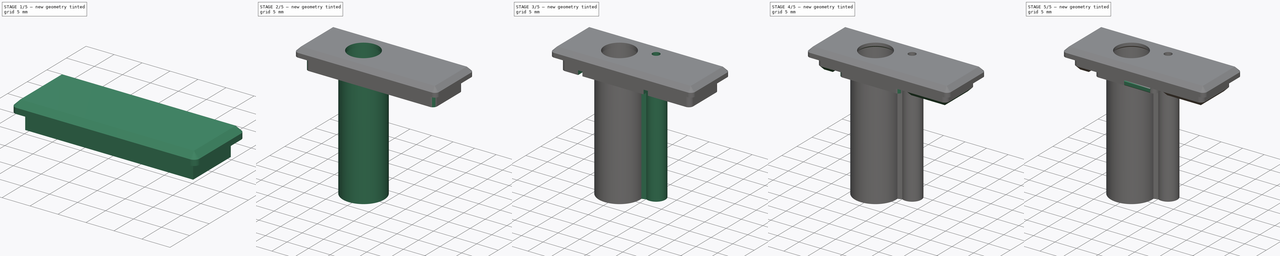
[diagram: build sequence overview — one tinted view per stage of 5, left to right]
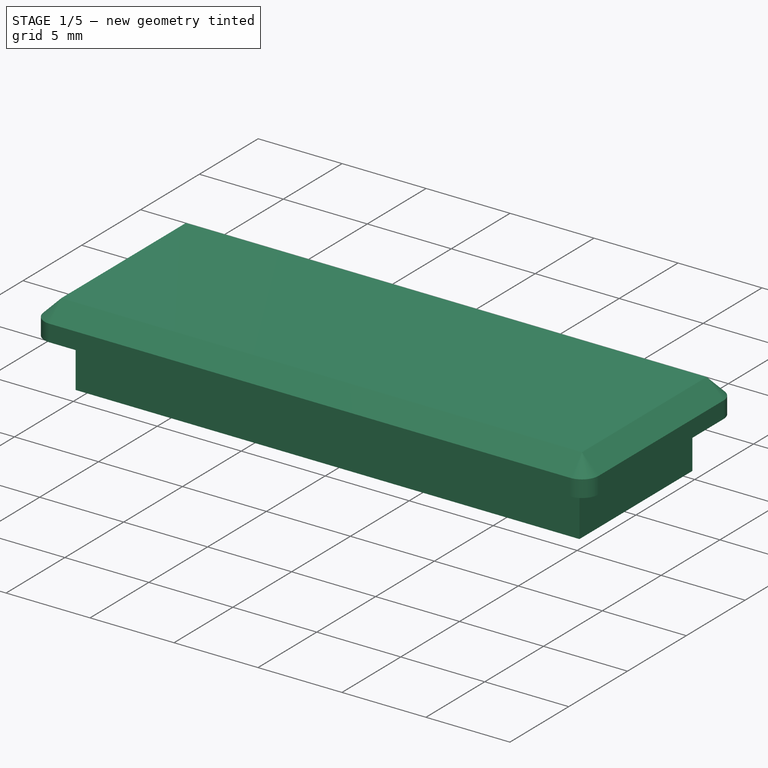
[diagram: stage 1 of 5 — iso view after this stage's code; geometry added in this stage tinted green]
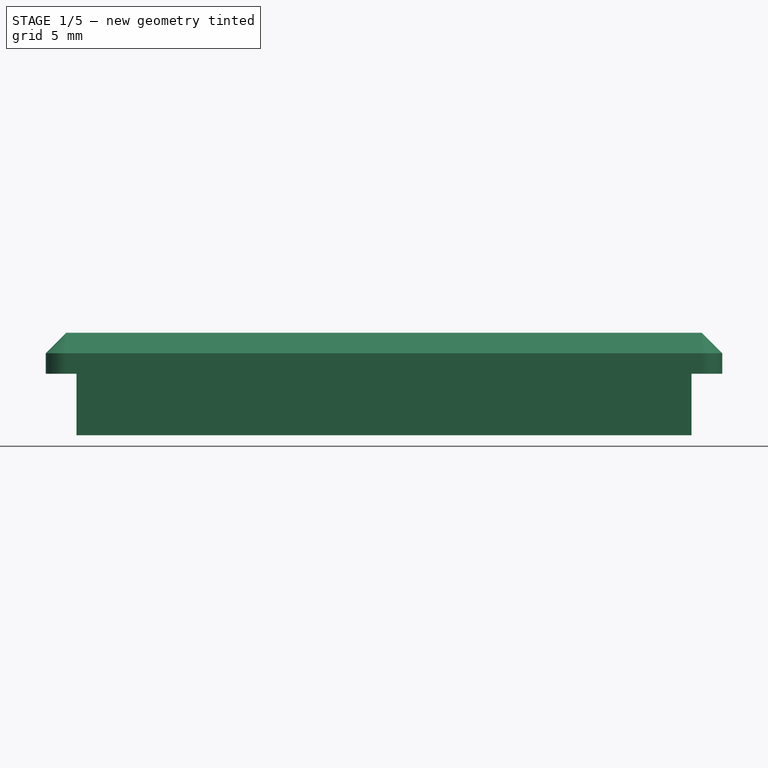
[diagram: stage 1 of 5 — front view after this stage's code; geometry added in this stage tinted green]
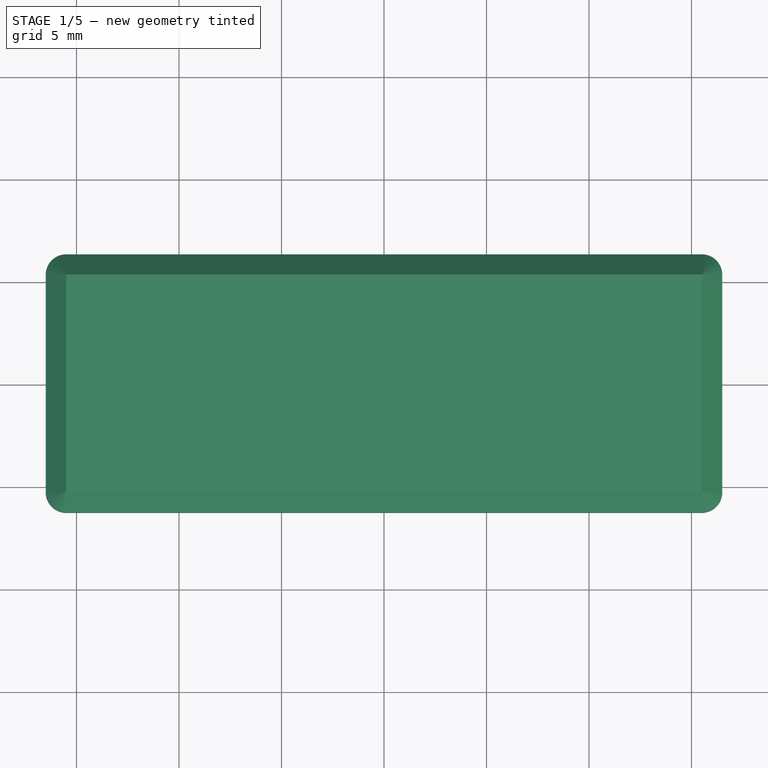
[diagram: stage 1 of 5 — top view after this stage's code; geometry added in this stage tinted green]
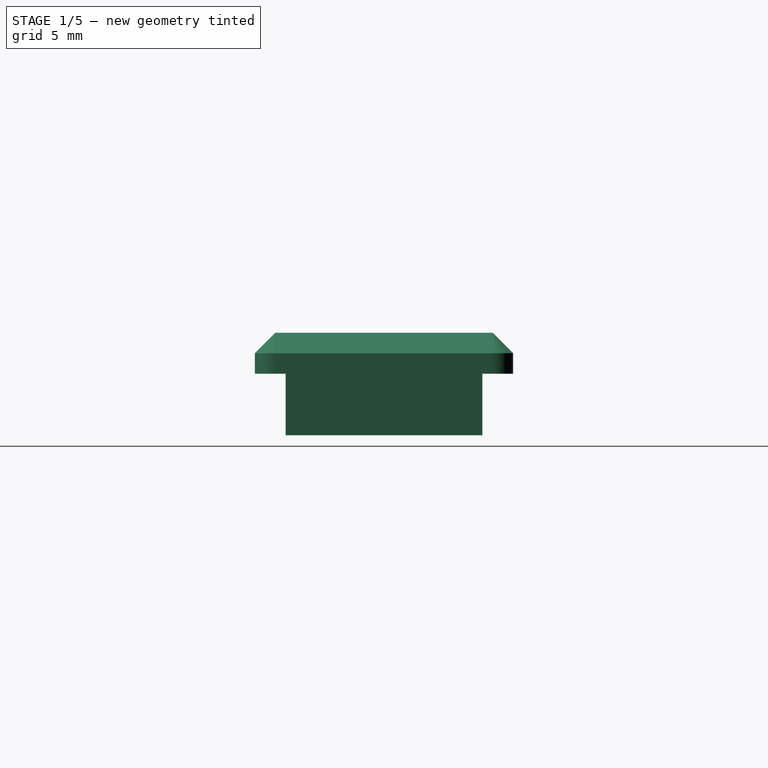
[diagram: stage 1 of 5 — right view after this stage's code; geometry added in this stage tinted green]
FCSTD DOCUMENT  (FreeCAD 0.21R33694 (Git))
Label: sw_and_led_plate
License: All rights reserved
LicenseURL: http://en.wikipedia.org/wiki/All_rights_reserved
objects: Sketcher::SketchObject×11, PartDesign::Pad×8, PartDesign::Chamfer×7, PartDesign::Fillet×3, PartDesign::Pocket×3, PartDesign::Body×1
note: 54 computed .brp shape members not serialized (recipe doc carries the construction recipe); baked Part::Feature solids carry a one-line shape summary decoded from their .brp

FEATURE [Sketcher::SketchObject] Sketch
  FullyConstrained = true
  MapMode = 5
  Support = -> [XY_Plane]
  sketch-geometry (4):
    g0: LineSegment StartX=-15 StartY=4.8 StartZ=0 EndX=15 EndY=4.8 EndZ=0
    g1: LineSegment StartX=15 StartY=4.8 StartZ=0 EndX=15 EndY=-4.8 EndZ=0
    g2: LineSegment StartX=15 StartY=-4.8 StartZ=0 EndX=-15 EndY=-4.8 EndZ=0
    g3: LineSegment StartX=-15 StartY=-4.8 StartZ=0 EndX=-15 EndY=4.8 EndZ=0
  constraints (12):
    c: Coincident(g0,g1)
    c: Coincident(g1,g2)
    c: Coincident(g2,g3)
    c: Coincident(g3,g0)
    c: Horizontal(g0)
    c: Horizontal(g2)
    c: Vertical(g1)
    c: Vertical(g3)
    c: DistanceX(g0,g0) = 30
    c: DistanceY(g3,g3) = 9.6
    c: DistanceY(g-1,g0) = 4.8
    c: DistanceX(g0,g-1) = 15
FEATURE [PartDesign::Pad] Pad
  Direction = (0,0,1)
  Length = 3
  Length2 = 10
  Profile = -> Sketch
  ReferenceAxis = -> Sketch [N_Axis]
  Type = 0
FEATURE [Sketcher::SketchObject] Sketch001
  ExternalGeometry = -> [Pad]
  FullyConstrained = true
  MapMode = 5
  Placement = pos=(0,0,3) rot=(0,0,1;0rad)
  Support = -> [Pad]
  sketch-geometry (4):
    g0: LineSegment StartX=-16.5 StartY=6.3 StartZ=0 EndX=16.5 EndY=6.3 EndZ=0
    g1: LineSegment StartX=16.5 StartY=6.3 StartZ=0 EndX=16.5 EndY=-6.3 EndZ=0
    g2: LineSegment StartX=16.5 StartY=-6.3 StartZ=0 EndX=-16.5 EndY=-6.3 EndZ=0
    g3: LineSegment StartX=-16.5 StartY=-6.3 StartZ=0 EndX=-16.5 EndY=6.3 EndZ=0
  constraints (12):
    c: Coincident(g0,g1)
    c: Coincident(g1,g2)
    c: Coincident(g2,g3)
    c: Coincident(g3,g0)
    c: Horizontal(g0)
    c: Horizontal(g2)
    c: Vertical(g1)
    c: Vertical(g3)
    c: DistanceX(g0,g-3) = 1.5
    c: DistanceY(g-3,g0) = 1.5
    c: DistanceY(g1,g-4) = 1.5
    c: DistanceX(g-4,g1) = 1.5
FEATURE [PartDesign::Pad] Pad001
  BaseFeature = -> Pad
  Direction = (0,0,1)
  Length = 2
  Length2 = 10
  Profile = -> Sketch001
  ReferenceAxis = -> Sketch001 [N_Axis]
  Type = 0
FEATURE [PartDesign::Fillet] Fillet
  Base = -> Pad001 [Edge8,Edge2,Edge5,Edge1]
  BaseFeature = -> Pad001
  Radius = 1
  SupportTransform = false
  UseAllEdges = false
FEATURE [PartDesign::Chamfer] Chamfer
  Angle = 45
  Base = -> Fillet [Edge20]
  BaseFeature = -> Fillet
  ChamferType = 0
  FlipDirection = false
  Size = 1
  Size2 = 1
  SupportTransform = false
  UseAllEdges = false
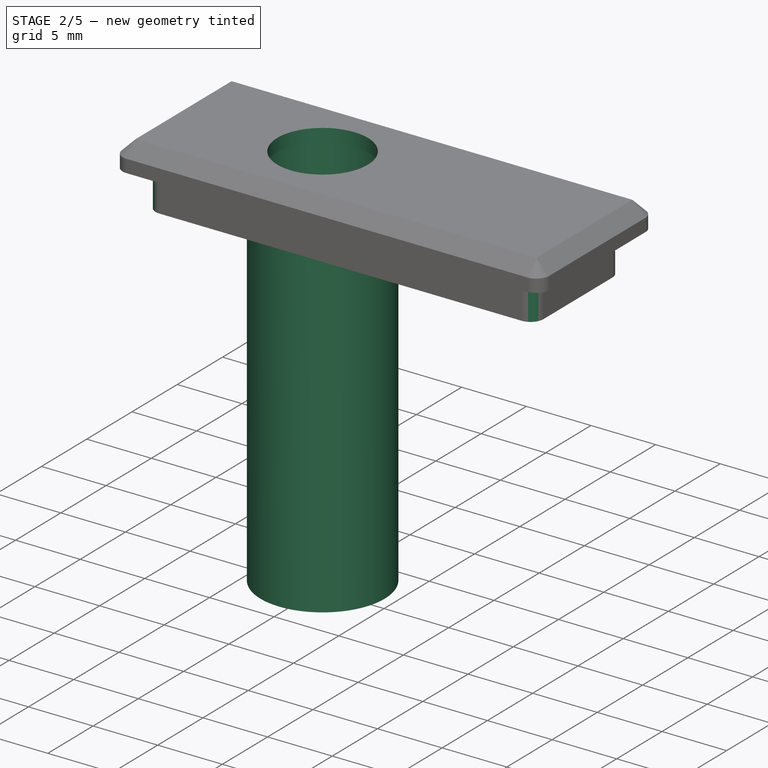
[diagram: stage 2 of 5 — iso view after this stage's code; geometry added in this stage tinted green]
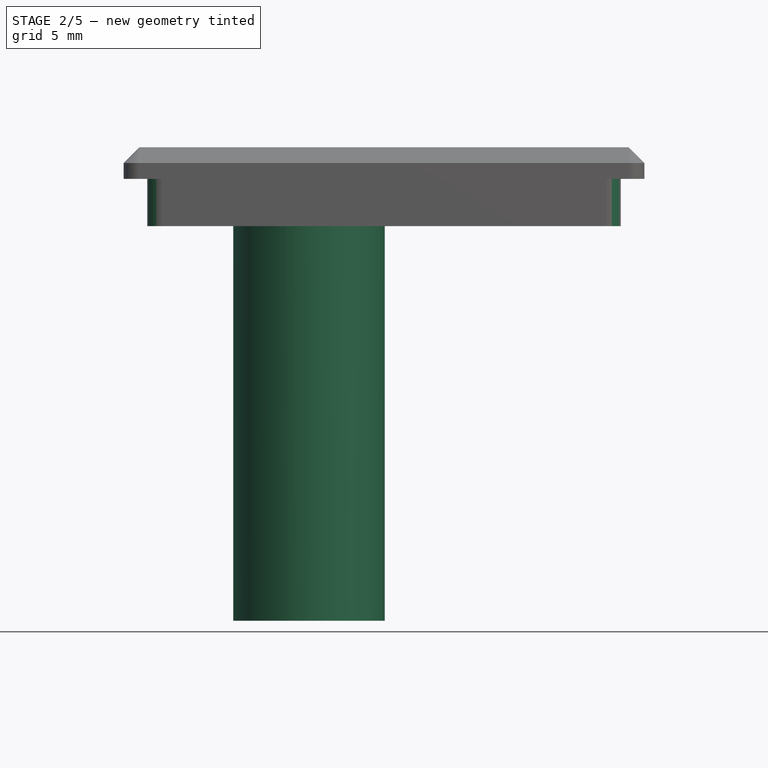
[diagram: stage 2 of 5 — front view after this stage's code; geometry added in this stage tinted green]
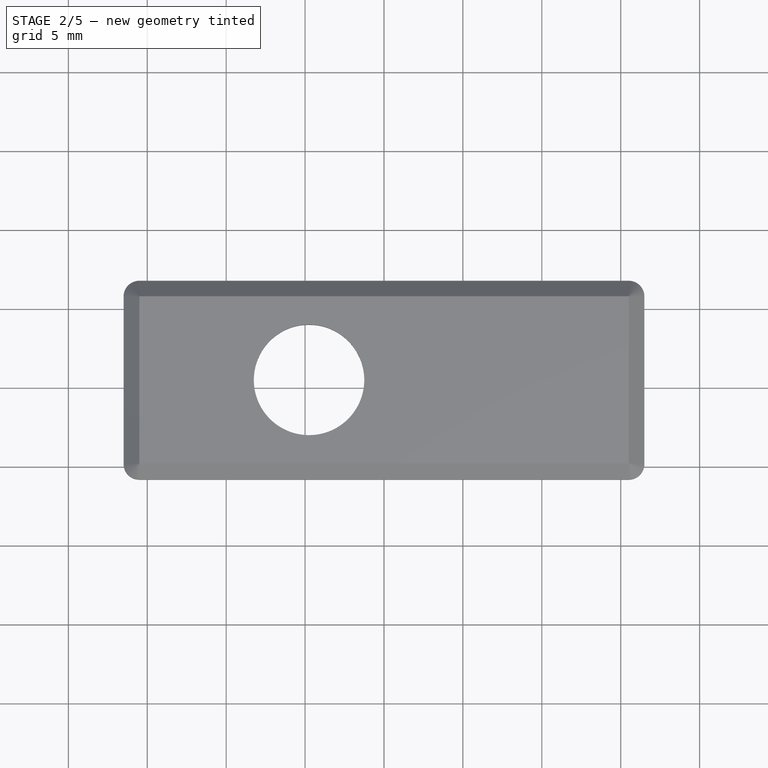
[diagram: stage 2 of 5 — top view after this stage's code; geometry added in this stage tinted green]
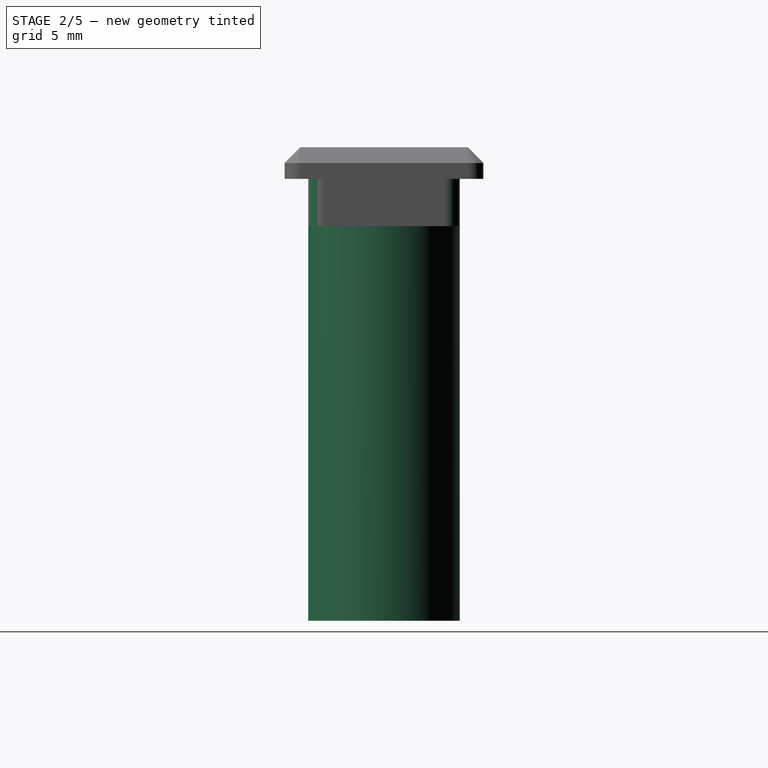
[diagram: stage 2 of 5 — right view after this stage's code; geometry added in this stage tinted green]
FEATURE [PartDesign::Fillet] Fillet001
  Base = -> Chamfer [Edge39,Edge40,Edge42,Edge44]
  BaseFeature = -> Chamfer
  Radius = 1
  SupportTransform = false
  UseAllEdges = false
FEATURE [Sketcher::SketchObject] Sketch002
  ExternalGeometry = -> [Fillet001]
  FullyConstrained = true
  MapMode = 5
  Placement = pos=(0,0,0) rot=(1,0,0;3.14159rad)
  Support = -> [Fillet001]
  sketch-geometry (1):
    g0: Circle CenterX=-4.75 CenterY=0 CenterZ=0 NormalX=0 NormalY=0 NormalZ=1 AngleXU=0 Radius=4
  constraints (3):
    c: DistanceX(g-3,g0) = 11.75
    c: Horizontal(g0,g-1)
    c: Diameter(g0) = 8
FEATURE [PartDesign::Pocket] Pocket
  BaseFeature = -> Fillet001
  Direction = (0,0,1)
  Length = 5
  Length2 = 5
  Profile = -> Sketch002
  ReferenceAxis = -> Sketch002 [N_Axis]
  Type = 0
FEATURE [Sketcher::SketchObject] Sketch003
  ExternalGeometry = -> [Pocket]
  FullyConstrained = true
  MapMode = 5
  Placement = pos=(0,0,0) rot=(1,0,0;3.14159rad)
  Support = -> [Pocket]
  sketch-geometry (2):
    g0: Circle CenterX=-4.75 CenterY=0 CenterZ=0 NormalX=0 NormalY=0 NormalZ=1 AngleXU=0 Radius=4
    g1: Circle CenterX=-4.75 CenterY=0 CenterZ=0 NormalX=0 NormalY=0 NormalZ=1 AngleXU=0 Radius=4.8
  constraints (5):
    c: PointOnObject(g0,g-1)
    c: Diameter(g0) = 8
    c: DistanceX(g-3,g0) = 11.75
    c: Coincident(g1,g0)
    c: Diameter(g1) = 9.6
FEATURE [PartDesign::Pad] Pad002
  BaseFeature = -> Pocket
  Direction = (0,0,-1)
  Length = 25
  Length2 = 10
  Profile = -> Sketch003
  ReferenceAxis = -> Sketch003 [N_Axis]
  Type = 0
FEATURE [Sketcher::SketchObject] Sketch005
  FullyConstrained = false
  MapMode = 5
  Placement = pos=(0,0,5) rot=(0,0,1;0rad)
  sketch-geometry (1):
    g0: Circle CenterX=1.85 CenterY=2.7 CenterZ=0 NormalX=0 NormalY=0 NormalZ=1 AngleXU=0 Radius=0.85
  constraints (2):
    c: Diameter(g0) = 1.7
    c: DistanceY(g-1,g0) = 2.7
FEATURE [Sketcher::SketchObject] Sketch006
  FullyConstrained = false
  MapMode = 5
  Placement = pos=(0,0,0) rot=(1,0,0;3.14159rad)
  sketch-geometry (2):
    g0: Circle CenterX=1.85 CenterY=-2.7 CenterZ=0 NormalX=0 NormalY=0 NormalZ=1 AngleXU=0 Radius=0.85
    g1: Circle CenterX=1.85 CenterY=-2.7 CenterZ=0 NormalX=0 NormalY=0 NormalZ=1 AngleXU=0 Radius=2.15
  constraints (4):
    c: Diameter(g0) = 1.7
    c: DistanceY(g0,g-1) = 2.7
    c: Coincident(g1,g0)
    c: Diameter(g1) = 4.3
FEATURE [Sketcher::SketchObject] Sketch007
  FullyConstrained = false
  MapMode = 5
  Placement = pos=(0,0,0) rot=(1,0,0;3.14159rad)
  sketch-geometry (8):
    g0: LineSegment StartX=-11 StartY=4.8 StartZ=0 EndX=-10 EndY=4.8 EndZ=0
    g1: LineSegment StartX=-10 StartY=4.8 StartZ=0 EndX=-10 EndY=-4.8 EndZ=0
    g2: LineSegment StartX=-10 StartY=-4.8 StartZ=0 EndX=-11 EndY=-4.8 EndZ=0
    g3: LineSegment StartX=-11 StartY=-4.8 StartZ=0 EndX=-11 EndY=4.8 EndZ=0
    g4: LineSegment StartX=4.2 StartY=4.8 StartZ=0 EndX=5.2 EndY=4.8 EndZ=0
    g5: LineSegment StartX=5.2 StartY=4.8 StartZ=0 EndX=5.2 EndY=-4.8 EndZ=0
    g6: LineSegment StartX=5.2 StartY=-4.8 StartZ=0 EndX=4.2 EndY=-4.8 EndZ=0
    g7: LineSegment StartX=4.2 StartY=-4.8 StartZ=0 EndX=4.2 EndY=4.8 EndZ=0
  constraints (20):
    c: Coincident(g0,g1)
    c: Coincident(g1,g2)
    c: Coincident(g2,g3)
    c: Coincident(g3,g0)
    c: Horizontal(g0)
    c: Horizontal(g2)
    c: Vertical(g1)
    c: Vertical(g3)
    c: Coincident(g4,g5)
    c: Coincident(g5,g6)
    c: Coincident(g6,g7)
    c: Coincident(g7,g4)
    c: Horizontal(g4)
    c: Horizontal(g6)
    c: Vertical(g5)
    c: Vertical(g7)
    c: DistanceX(g4,g4) = 1
    c: DistanceX(g-1,g6) = 4.2
    c: DistanceX(g1,g-1) = 10
    c: DistanceX(g0,g0) = 1
FEATURE [Sketcher::SketchObject] Sketch008
  FullyConstrained = false
  MapMode = 5
  Placement = pos=(0,0,-25) rot=(1,0,0;3.14159rad)
  sketch-geometry (8):
    g0: LineSegment StartX=-0.072417 StartY=-0.382873 StartZ=0 EndX=0.996273 EndY=-0.781203 EndZ=0
    g1: LineSegment StartX=0.996273 StartY=-0.781203 StartZ=0 EndX=0.29191 EndY=-1.50985 EndZ=0
    g2: LineSegment StartX=0.29191 StartY=-1.50985 StartZ=0 EndX=-0.179286 EndY=-2.4571 EndZ=0
    g3: LineSegment StartX=-0.179286 StartY=-2.4571 StartZ=0 EndX=-0.215945 EndY=-3.10665 EndZ=0
    g4: LineSegment StartX=-0.215945 StartY=-3.10665 StartZ=0 EndX=-1.03758 EndY=-2.73907 EndZ=0
    g5: LineSegment StartX=-1.03758 StartY=-2.73907 StartZ=0 EndX=-0.486219 EndY=-1.83095 EndZ=0
    g6: LineSegment StartX=-0.486219 StartY=-1.83095 StartZ=0 EndX=-0.226756 EndY=-0.91202 EndZ=0
    g7: LineSegment StartX=-0.226756 StartY=-0.91202 StartZ=0 EndX=-0.072417 EndY=-0.382873 EndZ=0
  constraints (8):
    c: Coincident(g0,g1)
    c: Coincident(g1,g2)
    c: Coincident(g2,g3)
    c: Coincident(g3,g4)
    c: Coincident(g4,g5)
    c: Coincident(g5,g6)
    c: Coincident(g6,g7)
    c: Coincident(g7,g0)
FEATURE [Sketcher::SketchObject] Sketch009
  ExternalGeometry = -> [Pad002]
  FullyConstrained = true
  MapMode = 5
  Placement = pos=(0,0,5) rot=(0,0,1;0rad)
  Support = -> [Pad002]
  sketch-geometry (2):
    g0: Circle CenterX=-4.75 CenterY=0 CenterZ=0 NormalX=0 NormalY=0 NormalZ=1 AngleXU=0 Radius=4.5
    g1: Circle CenterX=-4.75 CenterY=0 CenterZ=0 NormalX=0 NormalY=0 NormalZ=1 AngleXU=0 Radius=3.5
  constraints (5):
    c: PointOnObject(g0,g-1)
    c: Coincident(g1,g0)
    c: Diameter(g0) = 9
    c: Diameter(g1) = 7
    c: DistanceX(g-3,g0) = 11.75
FEATURE [PartDesign::Pad] Pad003
  BaseFeature = -> Pad002
  Direction = (0,0,1)
  Length = 1
  Length2 = 10
  Profile = -> Sketch009
  ReferenceAxis = -> Sketch009 [N_Axis]
  Reversed = true
  Type = 0
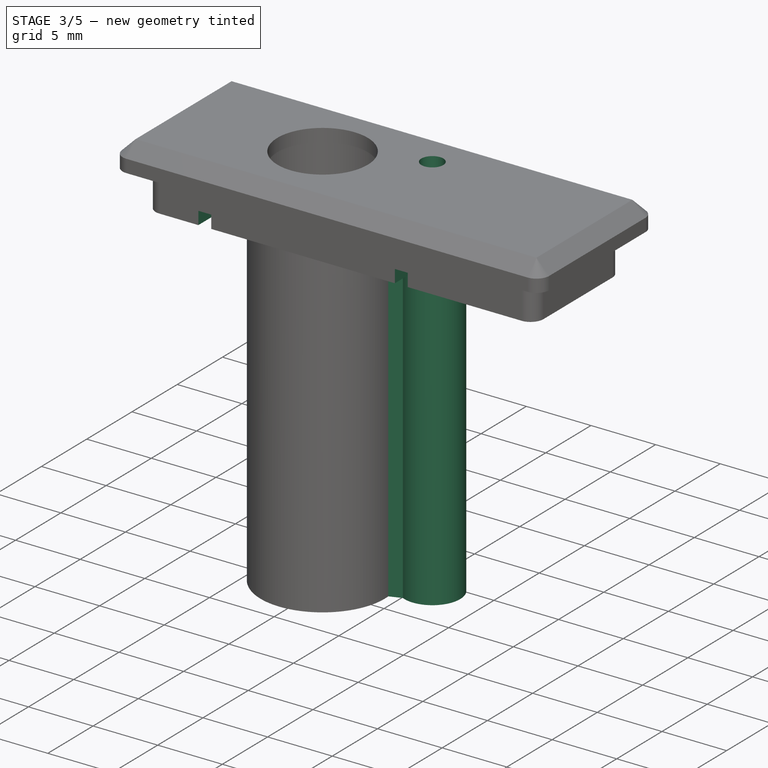
[diagram: stage 3 of 5 — iso view after this stage's code; geometry added in this stage tinted green]
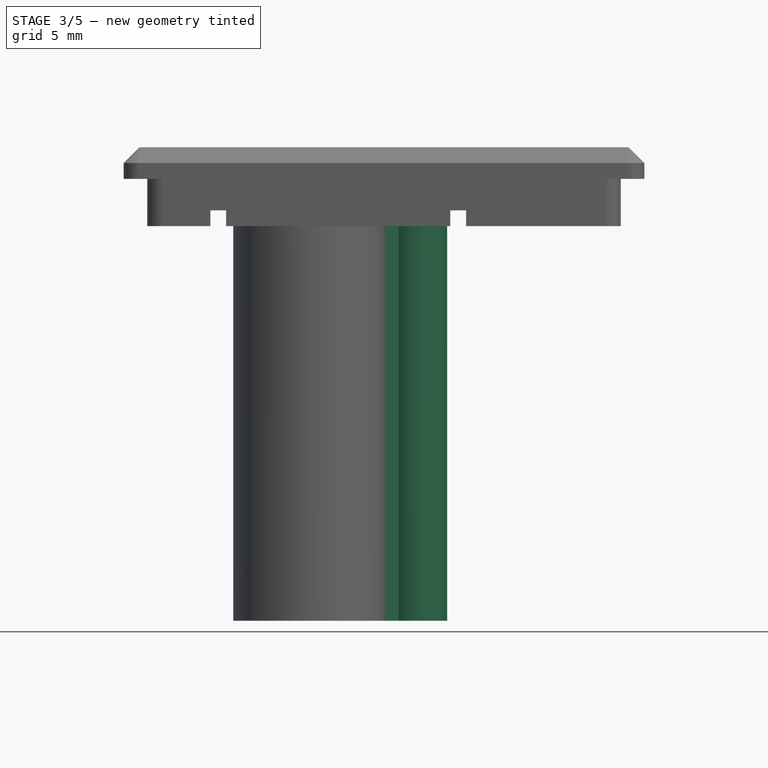
[diagram: stage 3 of 5 — front view after this stage's code; geometry added in this stage tinted green]
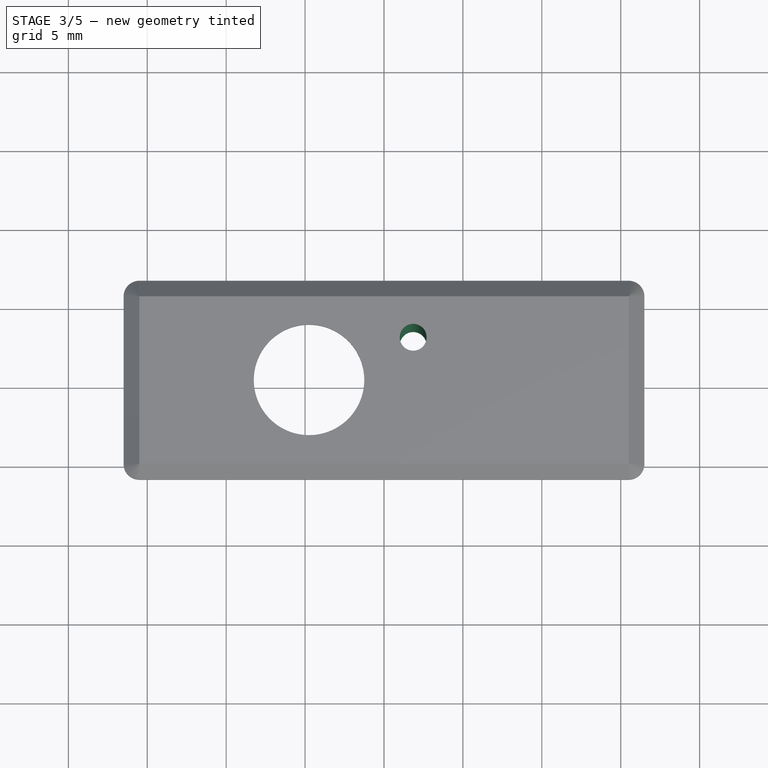
[diagram: stage 3 of 5 — top view after this stage's code; geometry added in this stage tinted green]
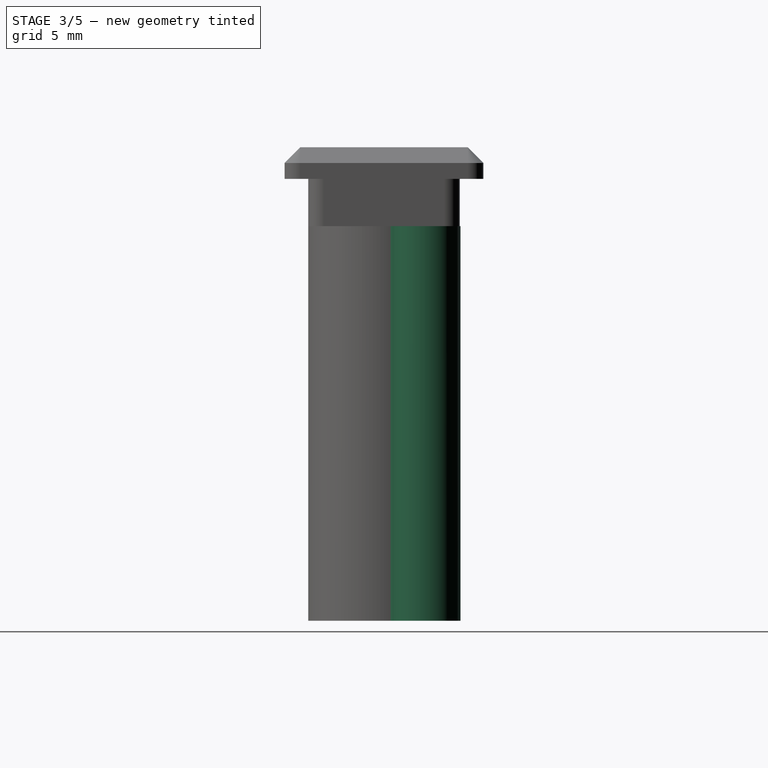
[diagram: stage 3 of 5 — right view after this stage's code; geometry added in this stage tinted green]
FEATURE [PartDesign::Pocket] Pocket001
  BaseFeature = -> Pad003
  Direction = (0,0,-1)
  Length = 5
  Length2 = 5
  Profile = -> Sketch005
  ReferenceAxis = -> Sketch005 [N_Axis]
  Type = 0
FEATURE [PartDesign::Pad] Pad004
  BaseFeature = -> Pocket001
  Direction = (0,0,-1)
  Length = 25
  Length2 = 10
  Profile = -> Sketch006
  ReferenceAxis = -> Sketch006 [N_Axis]
  Type = 0
FEATURE [PartDesign::Pocket] Pocket002
  BaseFeature = -> Pad004
  Direction = (0,0,1)
  Length = 1
  Length2 = 5
  Profile = -> Sketch007
  ReferenceAxis = -> Sketch007 [N_Axis]
  Type = 0
FEATURE [PartDesign::Pad] Pad005
  BaseFeature = -> Pocket002
  Direction = (0,0,-1)
  Length = 25
  Length2 = 10
  Profile = -> Sketch008
  ReferenceAxis = -> Sketch008 [N_Axis]
  Reversed = true
  Type = 0
FEATURE [PartDesign::Chamfer] Chamfer001
  Angle = 45
  Base = -> Pad005 [Edge130]
  BaseFeature = -> Pad005
  ChamferType = 0
  FlipDirection = false
  Size = 0.5
  Size2 = 1
  SupportTransform = false
  UseAllEdges = false
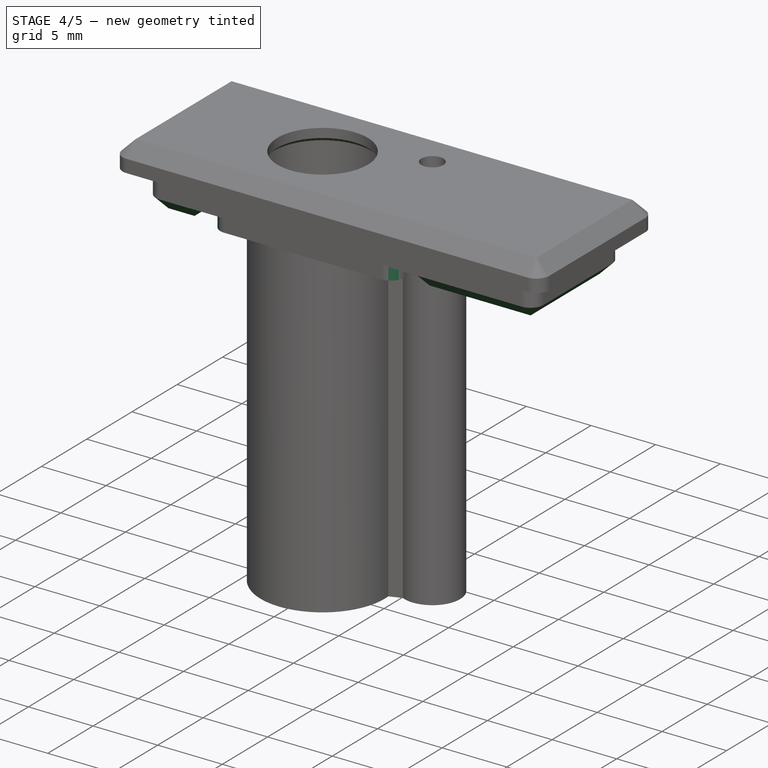
[diagram: stage 4 of 5 — iso view after this stage's code; geometry added in this stage tinted green]
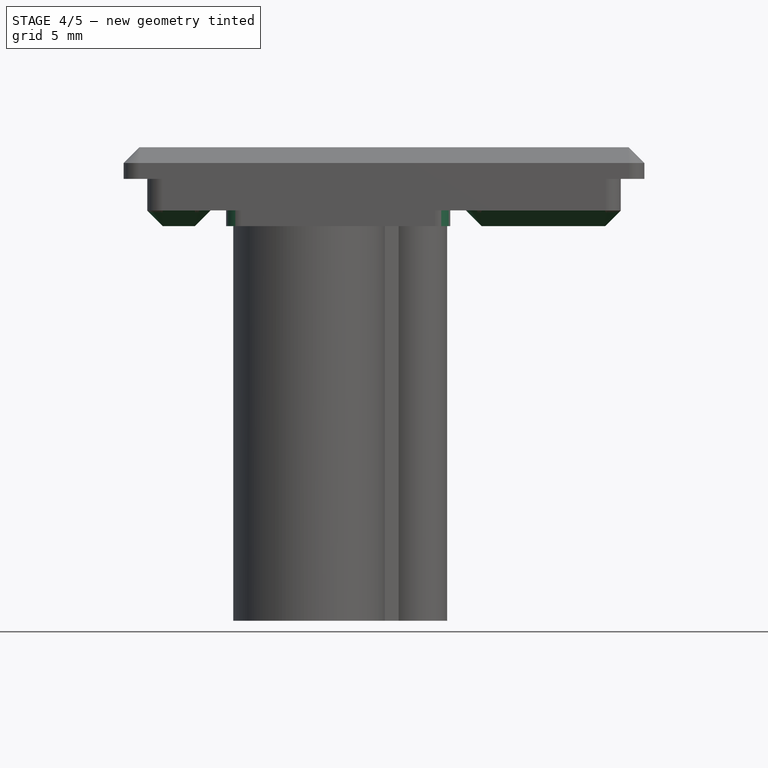
[diagram: stage 4 of 5 — front view after this stage's code; geometry added in this stage tinted green]
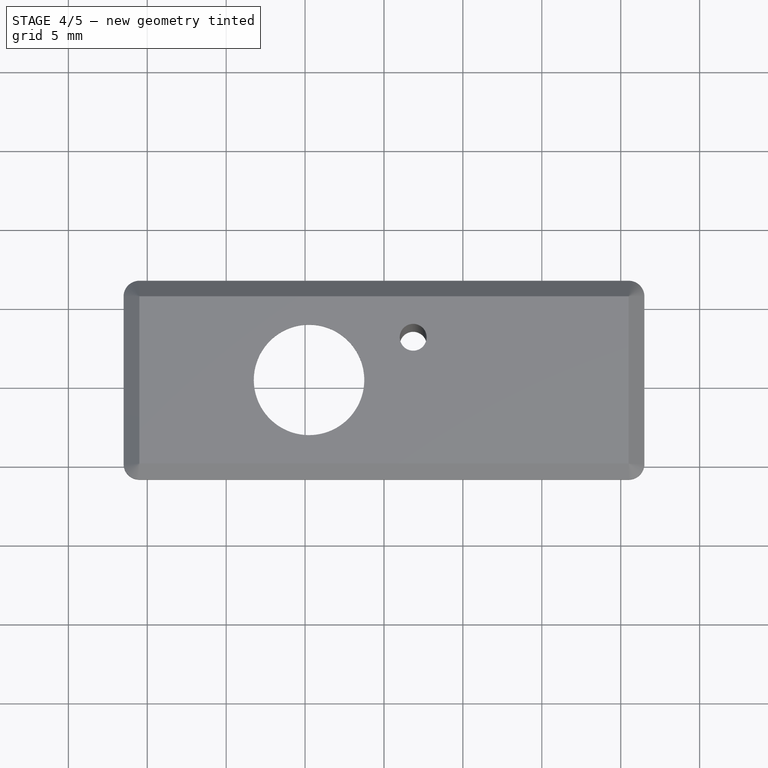
[diagram: stage 4 of 5 — top view after this stage's code; geometry added in this stage tinted green]
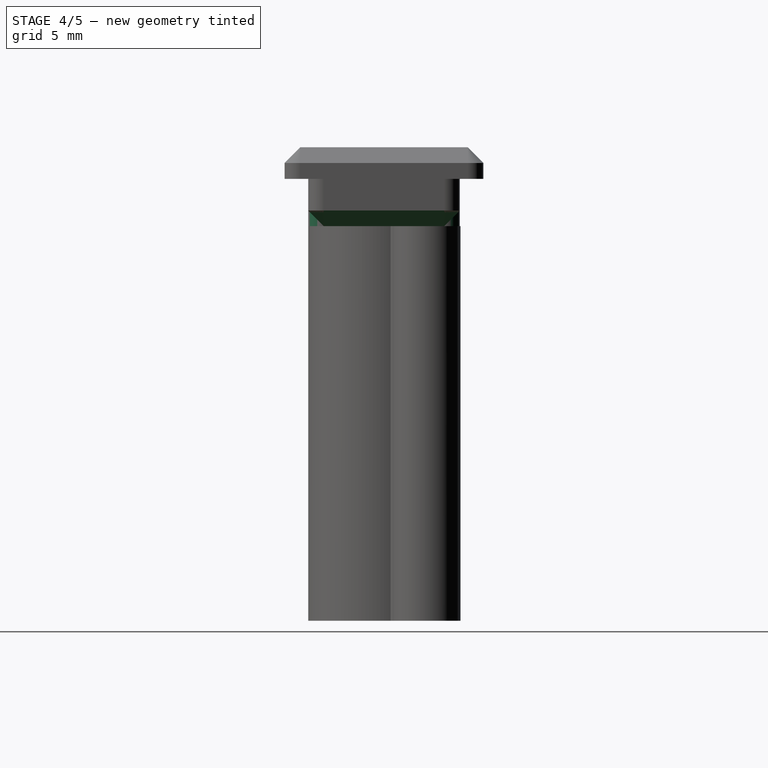
[diagram: stage 4 of 5 — right view after this stage's code; geometry added in this stage tinted green]
FEATURE [PartDesign::Chamfer] Chamfer002
  Angle = 45
  Base = -> Chamfer001 [Edge75]
  BaseFeature = -> Chamfer001
  ChamferType = 0
  FlipDirection = false
  Size = 1
  Size2 = 1
  SupportTransform = false
  UseAllEdges = false
FEATURE [PartDesign::Fillet] Fillet002
  Base = -> Chamfer002 [Edge45,Edge39,Edge43,Edge41,Edge56,Edge58,Edge50,Edge53]
  BaseFeature = -> Chamfer002
  Radius = 1
  SupportTransform = false
  UseAllEdges = false
FEATURE [PartDesign::Chamfer] Chamfer003
  Angle = 45
  Base = -> Fillet002 [Edge68,Edge95]
  BaseFeature = -> Fillet002
  ChamferType = 0
  FlipDirection = false
  Size = 0.99
  Size2 = 1
  SupportTransform = false
  UseAllEdges = false
FEATURE [PartDesign::Chamfer] Chamfer004
  Angle = 45
  Base = -> Chamfer003 [Edge209]
  BaseFeature = -> Chamfer003
  ChamferType = 0
  FlipDirection = false
  Size = 0.3
  Size2 = 1
  SupportTransform = false
  UseAllEdges = false
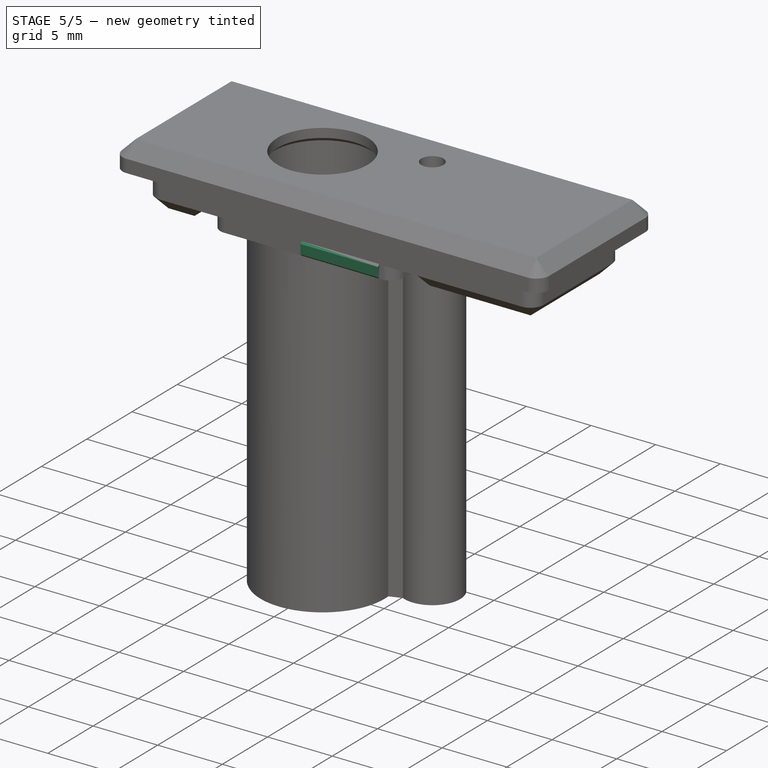
[diagram: stage 5 of 5 — iso view after this stage's code; geometry added in this stage tinted green]
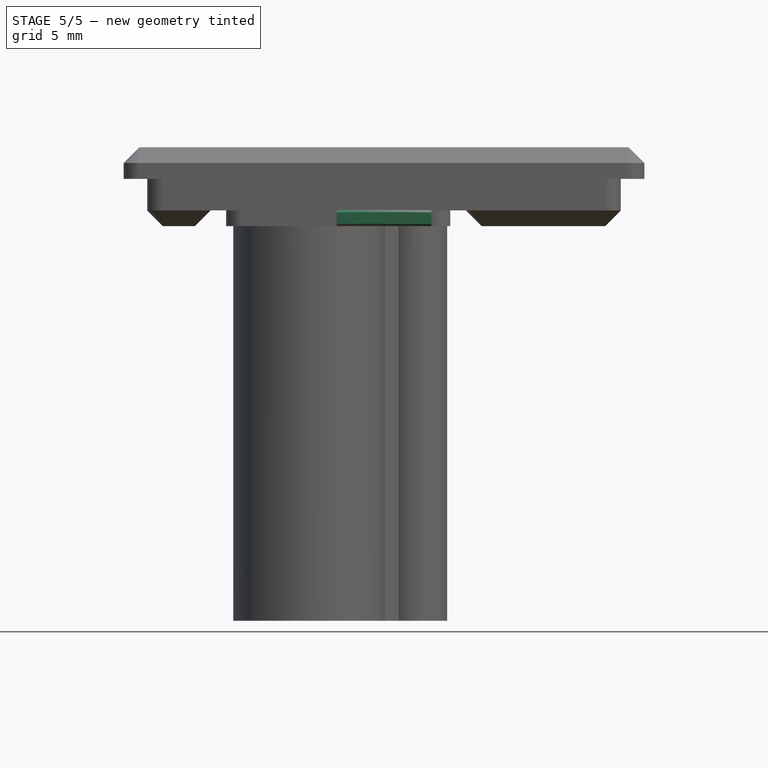
[diagram: stage 5 of 5 — front view after this stage's code; geometry added in this stage tinted green]
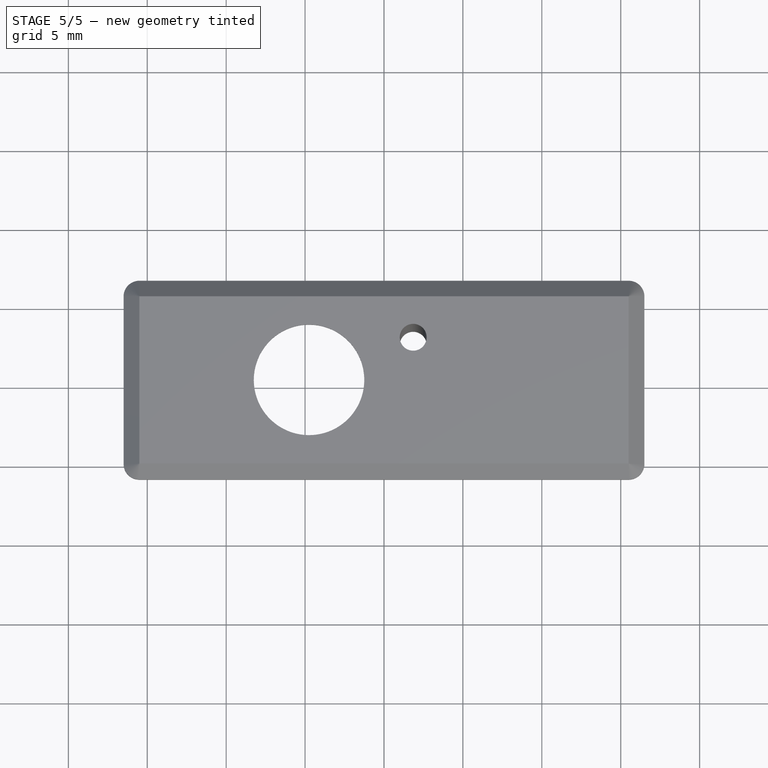
[diagram: stage 5 of 5 — top view after this stage's code; geometry added in this stage tinted green]
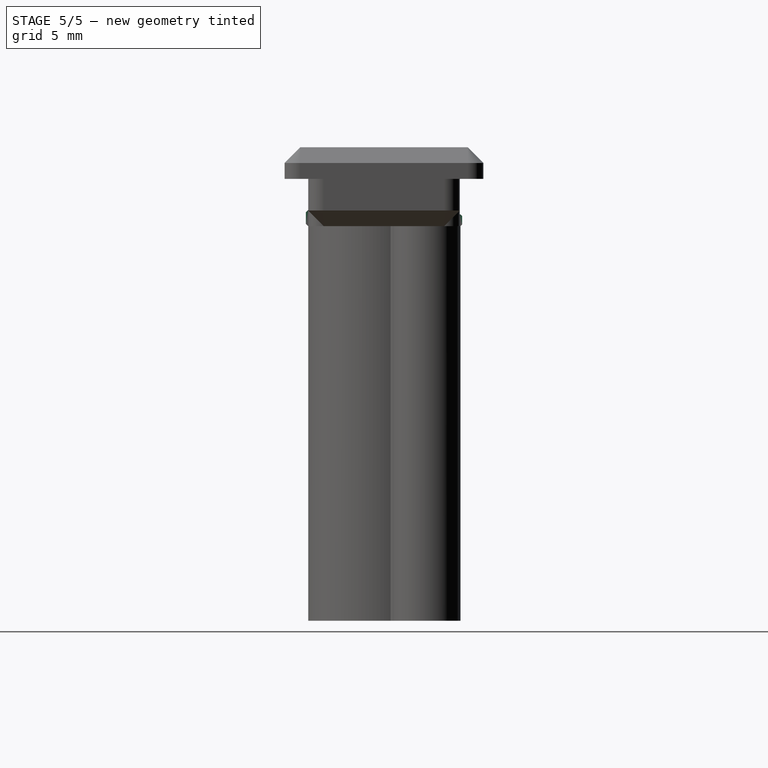
[diagram: stage 5 of 5 — right view after this stage's code; geometry added in this stage tinted green]
FEATURE [Sketcher::SketchObject] Sketch010
  FullyConstrained = true
  MapMode = 5
  Placement = pos=(0,4.8,0) rot=(0,0.707107,0.707107;3.14159rad)
  Support = -> [Chamfer004]
  sketch-geometry (4):
    g0: LineSegment StartX=-3 StartY=0.75 StartZ=0 EndX=3 EndY=0.75 EndZ=0
    g1: LineSegment StartX=3 StartY=0.75 StartZ=0 EndX=3 EndY=0 EndZ=0
    g2: LineSegment StartX=3 StartY=0 StartZ=0 EndX=-3 EndY=0 EndZ=0
    g3: LineSegment StartX=-3 StartY=0 StartZ=0 EndX=-3 EndY=0.75 EndZ=0
  constraints (12):
    c: Coincident(g0,g1)
    c: Coincident(g1,g2)
    c: Coincident(g2,g3)
    c: Coincident(g3,g0)
    c: Horizontal(g0)
    c: Horizontal(g2)
    c: Vertical(g1)
    c: Vertical(g3)
    c: PointOnObject(g1,g-1)
    c: DistanceY(g3,g3) = 0.75
    c: DistanceX(g0,g0) = 6
    c: DistanceX(g2,g-1) = 3
FEATURE [PartDesign::Pad] Pad006
  BaseFeature = -> Chamfer004
  Direction = (0,1,-2e-16)
  Length = 0.15
  Length2 = 10
  Profile = -> Sketch010
  ReferenceAxis = -> Sketch010 [N_Axis]
  Type = 0
FEATURE [PartDesign::Chamfer] Chamfer005
  Angle = 45
  Base = -> Pad006 [Edge211,Edge193]
  BaseFeature = -> Pad006
  ChamferType = 0
  FlipDirection = false
  Size = 0.1
  Size2 = 1
  SupportTransform = false
  UseAllEdges = false
FEATURE [Sketcher::SketchObject] Sketch011
  FullyConstrained = false
  MapMode = 5
  Placement = pos=(0,-4.8,0) rot=(1,0,0;1.5708rad)
  Support = -> [Chamfer005]
  sketch-geometry (4):
    g0: LineSegment StartX=-3 StartY=1.02348 StartZ=0 EndX=3 EndY=1.02348 EndZ=0
    g1: LineSegment StartX=3 StartY=1.02348 StartZ=0 EndX=3 EndY=0 EndZ=0
    g2: LineSegment StartX=3 StartY=0 StartZ=0 EndX=-3 EndY=0 EndZ=0
    g3: LineSegment StartX=-3 StartY=0 StartZ=0 EndX=-3 EndY=1.02348 EndZ=0
  constraints (11):
    c: Coincident(g0,g1)
    c: Coincident(g1,g2)
    c: Coincident(g2,g3)
    c: Coincident(g3,g0)
    c: Horizontal(g0)
    c: Horizontal(g2)
    c: Vertical(g1)
    c: Vertical(g3)
    c: Horizontal(g1,g-1)
    c: DistanceX(g0,g0) = 6
    c: DistanceX(g2,g-1) = 3
FEATURE [PartDesign::Pad] Pad007
  BaseFeature = -> Chamfer005
  Direction = (0,-1,2e-16)
  Length = 0.15
  Length2 = 10
  Profile = -> Sketch011
  ReferenceAxis = -> Sketch011 [N_Axis]
  Type = 0
FEATURE [PartDesign::Chamfer] Chamfer006
  Angle = 45
  Base = -> Pad007 [Edge146,Edge204]
  BaseFeature = -> Pad007
  ChamferType = 0
  FlipDirection = false
  Size = 0.149
  Size2 = 1
  SupportTransform = false
  UseAllEdges = false
FEATURE [PartDesign::Body] Body
  Group = -> [Sketch,Pad,Sketch001,Pad001,Fillet,Chamfer,Fillet001,Sketch002,Pocket,Sketch003,Pad002,Sketch005,Sketch006,Sketch007,Sketch008,Sketch009,Pad003,Pocket001,Pad004,Pocket002,Pad005,Chamfer001,Chamfer002,Fillet002,Chamfer003,Chamfer004,Sketch010,Pad006,Chamfer005,Sketch011,Pad007,Chamfer006]
  Origin = -> Origin
  Tip = -> Chamfer006
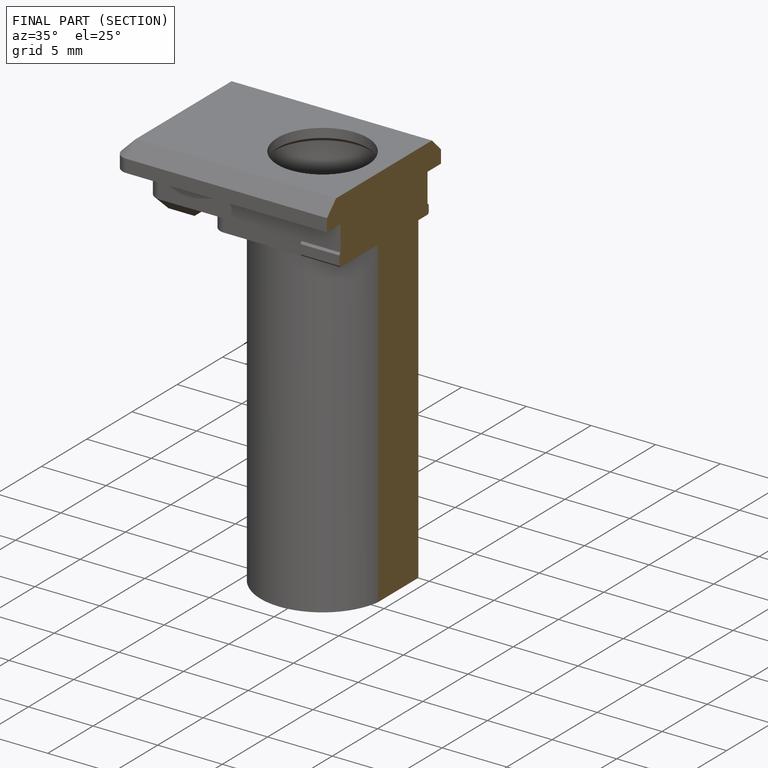
[diagram: finished part — half-section view (interior)]
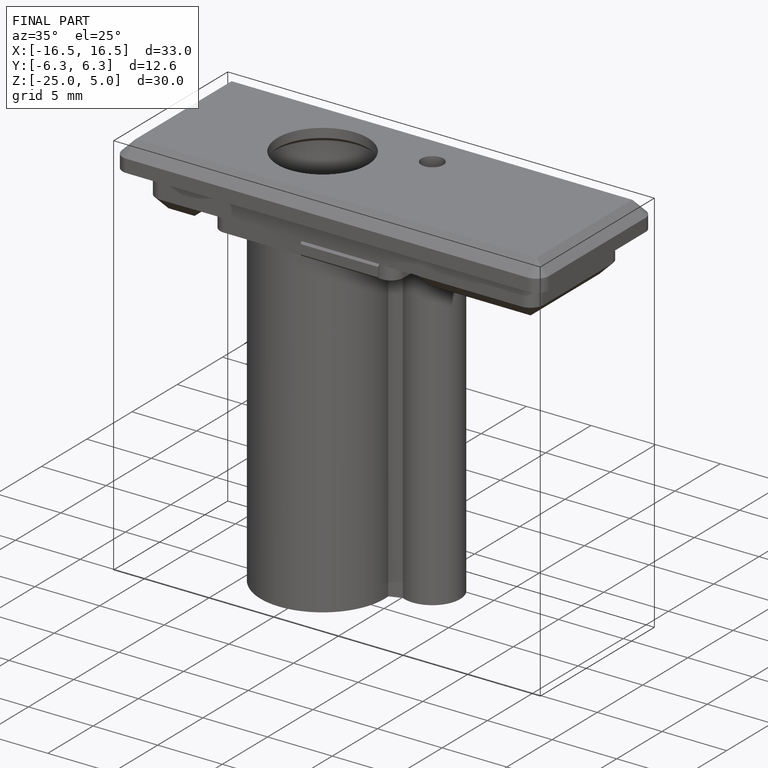
[diagram: finished part — iso view with bounding-box wireframe]
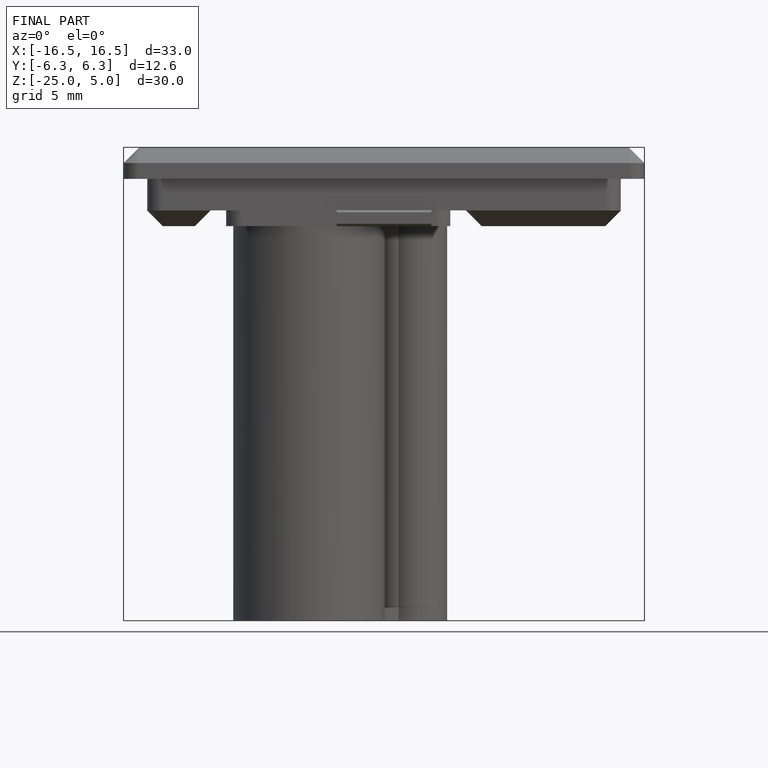
[diagram: finished part — front view with bounding-box wireframe]
